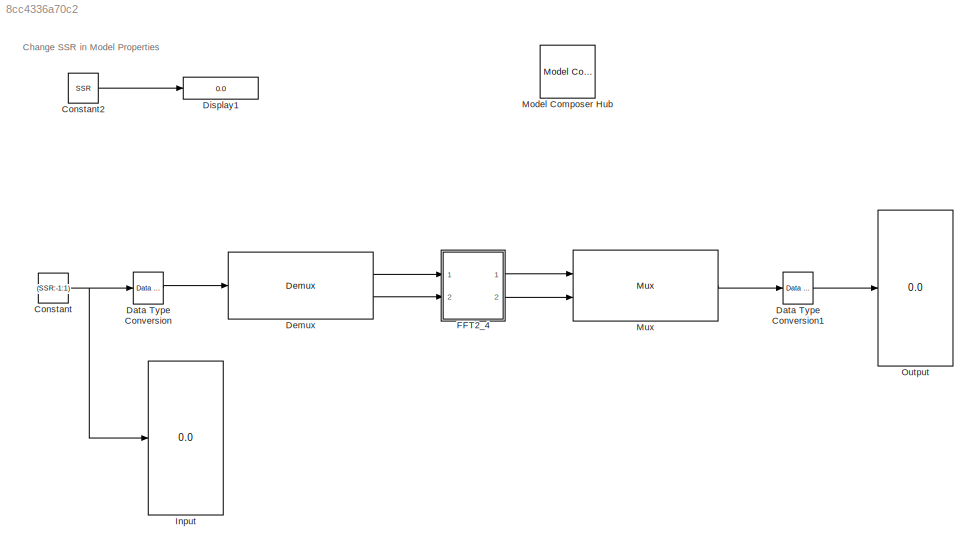
MODEL slx_8cc4336a70c2
KIND model
CONFIG AbsTol = auto
CONFIG EnableMultiTasking = off
CONFIG FixedStep = auto
CONFIG InitFcn = SSR=8;
CONFIG MaxStep = auto
CONFIG MinStep = auto
CONFIG RelTol = 1e-3
CONFIG SampleTimeConstraint = Unconstrained
CONFIG Solver = VariableStepAuto
CONFIG SolverName = VariableStepAuto
CONFIG StartTime = 0.0
CONFIG StopTime = 10.0
BLOCK [Constant] Constant
  SampleTime = 1
  Value = (SSR:-1:1)
BLOCK [Constant] Constant2
  SampleTime = 1
  Value = SSR
  VectorParams1D = off
BLOCK [Reference] Data Type Conversion  REF=ModelComposer/Data Type Conversion
  Ports = [1, 1]
  SourceBlock = ModelComposer/Data Type Conversion
  SourceType = DTC
BLOCK [Reference] Data Type Conversion1  REF=ModelComposer/Data Type Conversion
  Ports = [1, 1]
  SourceBlock = ModelComposer/Data Type Conversion
  SourceType = DTC
BLOCK [Reference] Demux  REF=design_lib/Demux
  Ports = [1, 2]
  SourceBlock = design_lib/Demux
  SourceType = Import Function
BLOCK [Display] Display1
  Decimation = 1
  Ports = [1]
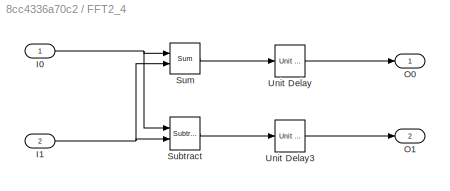
BLOCK [SubSystem] FFT2_4
  Ports = [2, 2]
  RequestExecContextInheritance = off
BLOCK [Inport] FFT2_4/I0
  IconDisplay = Port number
BLOCK [Inport] FFT2_4/I1
  IconDisplay = Port number
  Port = 2
BLOCK [Outport] FFT2_4/O0
  IconDisplay = Port number
BLOCK [Outport] FFT2_4/O1
  IconDisplay = Port number
  Port = 2
BLOCK [Reference] FFT2_4/Subtract  REF=ModelComposer/Subtract
  Ports = [2, 1]
  SourceBlock = ModelComposer/Subtract
  SourceType = Subtract
BLOCK [Reference] FFT2_4/Sum  REF=ModelComposer/Sum
  Ports = [2, 1]
  SourceBlock = ModelComposer/Sum
  SourceType = Sum
BLOCK [Reference] FFT2_4/Unit Delay  REF=ModelComposer/Unit Delay
  Ports = [1, 1]
  SourceBlock = ModelComposer/Unit Delay
  SourceType = Unit Delay
BLOCK [Reference] FFT2_4/Unit Delay3  REF=ModelComposer/Unit Delay
  Ports = [1, 1]
  SourceBlock = ModelComposer/Unit Delay
  SourceType = Unit Delay
BLOCK [Display] Input
  Decimation = 1
  Ports = [1]
BLOCK [Reference] Model Composer Hub  REF=ModelComposer/Model Composer Hub
  Ports = []
  SourceBlock = ModelComposer/Model Composer Hub
  SourceType = Implementation
BLOCK [Reference] Mux  REF=design_lib/Mux
  Ports = [2, 1]
  SourceBlock = design_lib/Mux
  SourceType = Import Function
BLOCK [Display] Output
  Decimation = 1
  Ports = [1]
ANNOTATION (root): Change SSR in Model Properties
LINE Constant2:1 -> Display1:1
NET Constant:1 -> Data Type Conversion:1, Input:1
LINE Data Type Conversion1:1 -> Output:1
LINE Data Type Conversion:1 -> Demux:1
LINE Demux:1 -> FFT2_4:1
LINE Demux:2 -> FFT2_4:2
NET FFT2_4/I0:1 -> FFT2_4/Subtract:1, FFT2_4/Sum:1
NET FFT2_4/I1:1 -> FFT2_4/Subtract:2, FFT2_4/Sum:2
LINE FFT2_4/Subtract:1 -> FFT2_4/Unit Delay3:1
LINE FFT2_4/Sum:1 -> FFT2_4/Unit Delay:1
LINE FFT2_4/Unit Delay3:1 -> FFT2_4/O1:1
LINE FFT2_4/Unit Delay:1 -> FFT2_4/O0:1
LINE FFT2_4:1 -> Mux:1
LINE FFT2_4:2 -> Mux:2
LINE Mux:1 -> Data Type Conversion1:1
note: NET lines group one-source signal fan-out (src -> all destinations, sorted); 1:1 wires keep LINE
